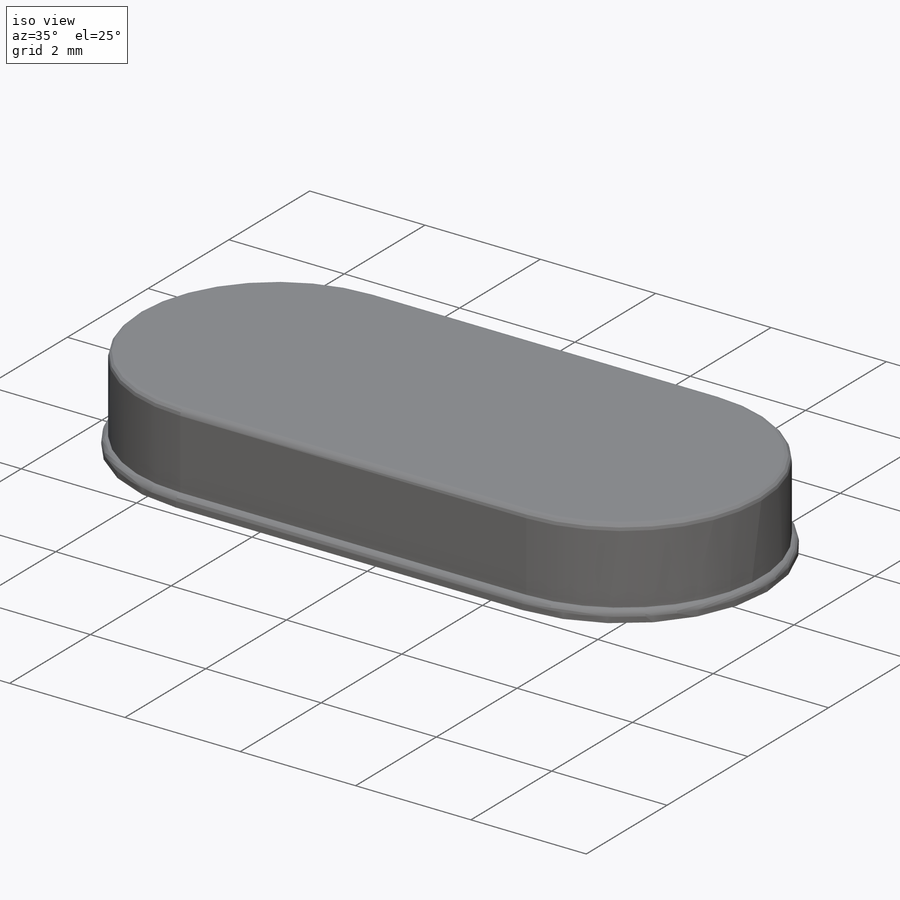
[diagram: iso view]
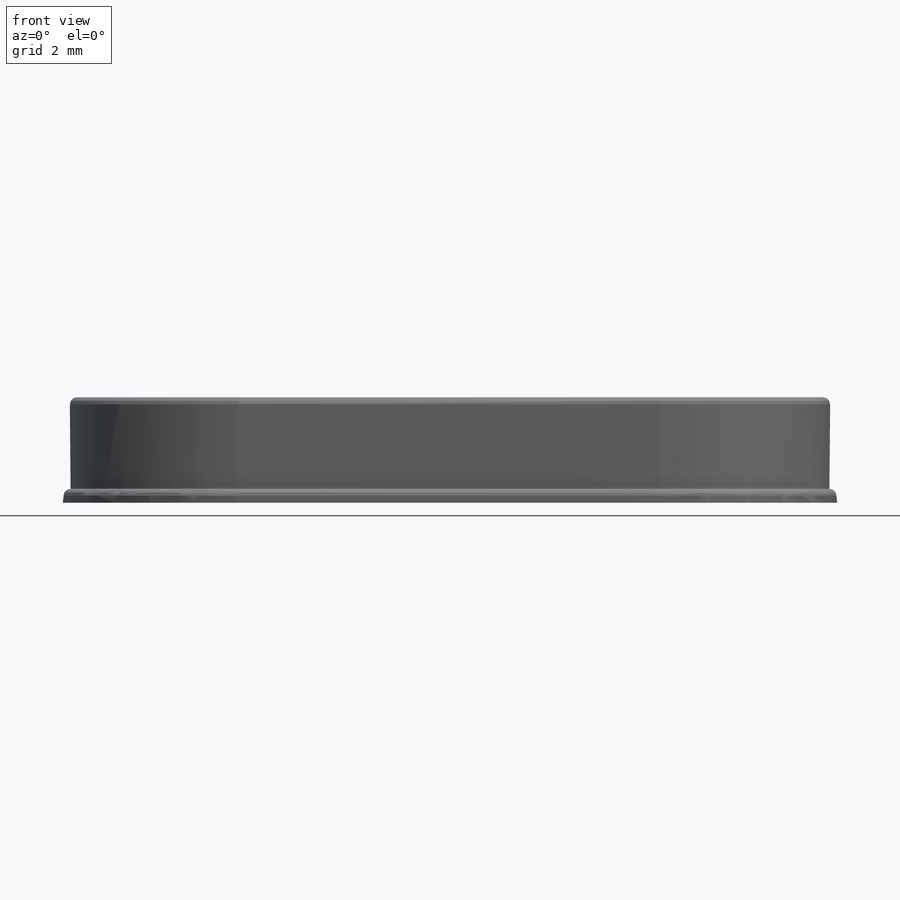
[diagram: front view]
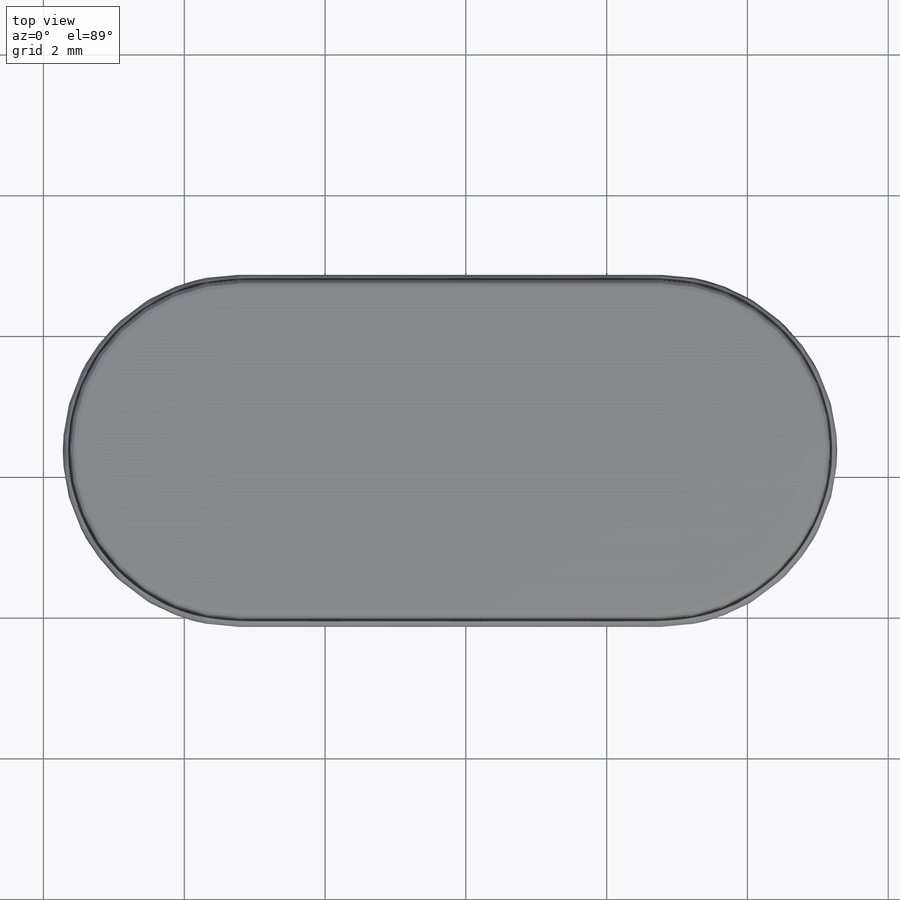
[diagram: top view]
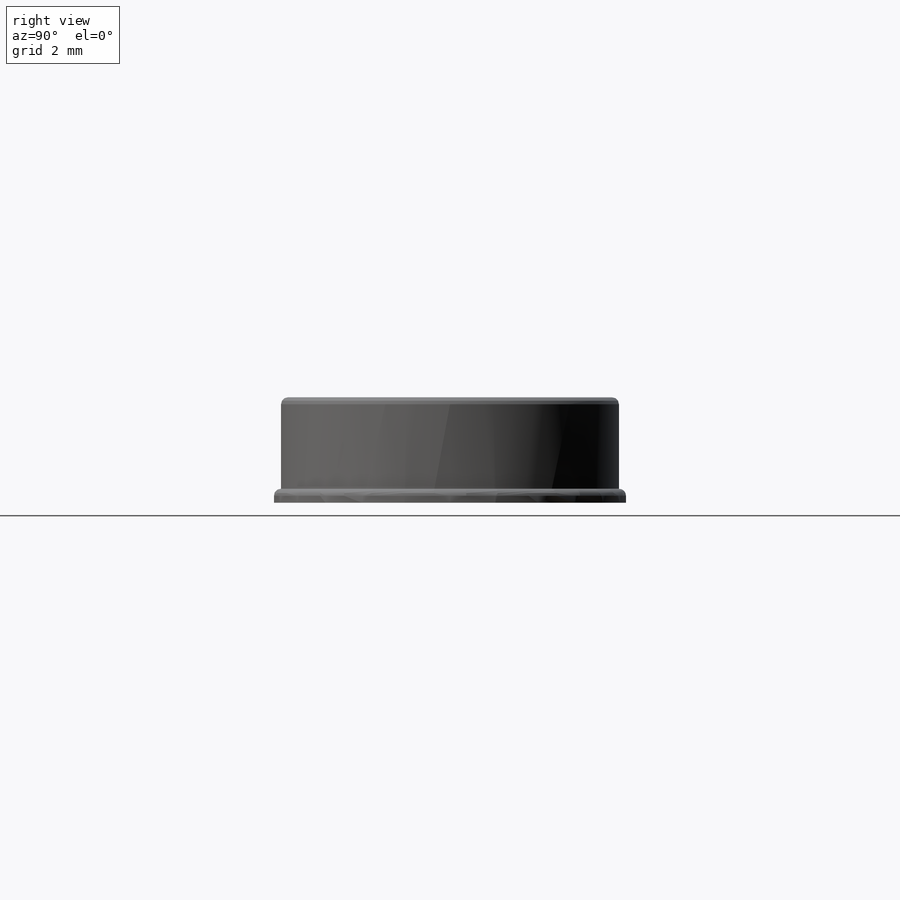
[diagram: right view]
SOLIDWORKS PART (.sldprt)
format: sldprt  version: not decoded by parser v0  size: 200,704 bytes
history: native  units: mm
features: sketch x2, extrude x2, fillet x2, material x1 (+12 scaffold rows collapsed)
feature tree (19):
  scaffold x12  (default folders/planes/origin — collapsed)
  material  "1060 Alloy"
  sketch  "Sketch2"  dims[c1.D2=1.0mm c1.D1=5.0mm c2.D2=2.0mm c2.D1=5.0mm c3.D2=11.0mm]
  extrude  "Boss-Extrude1"  Depth=0.2mm
  fillet  "Fillet3"  Radius=0.1mm
  sketch  "Sketch5"
  extrude  "Boss-Extrude2"  Depth=1.3mm
  fillet  "Fillet4"  Radius=0.1mm
decode coverage: 5 of 6 modeling features carry decoded parameters
note: suppression state not decoded; provenance and decode notes live in map.json
